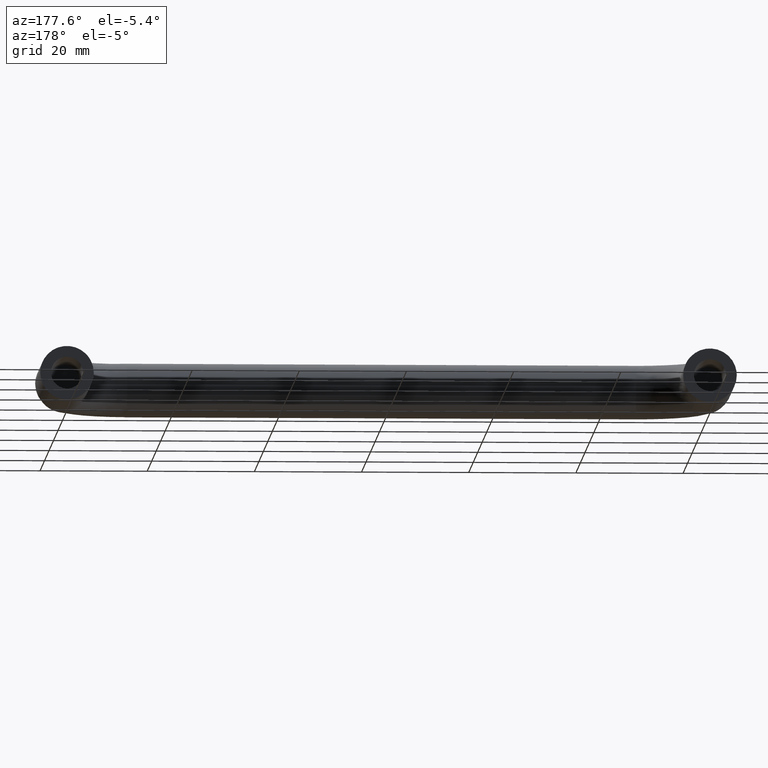
[diagram: clean part render]
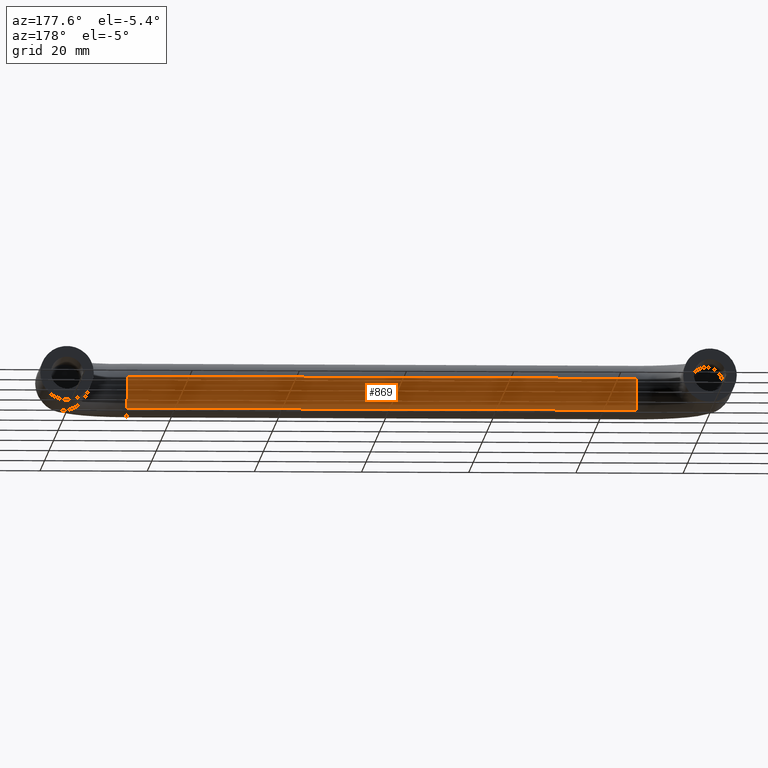
[diagram: same view with one face highlighted and labeled with its STEP entity id]
A machine part, auxiliary view. The second image highlights one B-rep face of the part: STEP entity #869.
In plain terms, the highlighted face is a freeform B-spline surface patch.
Its self-contained STEP definition (entity closure, byte-faithful):
#650=CARTESIAN_POINT('',(107.500000000000000,-30.521972536837890,2.224245948443190));
#651=VERTEX_POINT('',#650);
#669=CARTESIAN_POINT('',(12.499999999949400,-30.521972536863860,2.224245948429610));
#670=VERTEX_POINT('',#669);
#671=CARTESIAN_POINT('',(12.499999999949400,-30.521972536863860,2.224245948429610));
#672=CARTESIAN_POINT('',(107.500000000000000,-30.521972536837890,2.224245948443190));
#673=QUASI_UNIFORM_CURVE('',1,(#671,#672),.UNSPECIFIED.,.F.,.U.);
#674=EDGE_CURVE('',#670,#651,#673,.T.);
#723=CARTESIAN_POINT('',(12.500000000000000,-31.558228442135000,-3.626873108266699));
#724=VERTEX_POINT('',#723);
#740=CARTESIAN_POINT('',(107.500000000324110,-31.558227913072550,-3.626872605960986));
#741=VERTEX_POINT('',#740);
#742=CARTESIAN_POINT('',(12.500000000000000,-31.558228442135000,-3.626873108266699));
#743=CARTESIAN_POINT('',(107.500000000324110,-31.558227913072550,-3.626872605960986));
#744=QUASI_UNIFORM_CURVE('',1,(#742,#743),.UNSPECIFIED.,.F.,.U.);
#745=EDGE_CURVE('',#724,#741,#744,.T.);
#795=CARTESIAN_POINT('',(10.124999941214480,-31.558227121531232,-3.626871855061437));
#796=CARTESIAN_POINT('',(10.124999941214483,-28.878708249008774,-1.084103389193821));
#797=CARTESIAN_POINT('',(10.124999941214483,-30.521972536820851,2.224245948408881));
#798=CARTESIAN_POINT('',(109.934375002968100,-31.558227121531232,-3.626871855061437));
#799=CARTESIAN_POINT('',(109.934375002968070,-28.878708249008760,-1.084103389193821));
#800=CARTESIAN_POINT('',(109.934375002968050,-30.521972536820840,2.224245948408881));
#808=(BOUNDED_SURFACE()B_SPLINE_SURFACE(2,1,((#795,#798),(#796,#799),(#797,#800)),.UNSPECIFIED.,.F.,.F.,.U.)B_SPLINE_SURFACE_WITH_KNOTS((3,3),(2,2),(0.0,6.582243619433232),(0.0,99.809375061753585),.UNSPECIFIED.)GEOMETRIC_REPRESENTATION_ITEM()RATIONAL_B_SPLINE_SURFACE(((1.0,1.0),(0.765685424949238,0.765685424949238),(0.906274169979695,0.906274169979695)))REPRESENTATION_ITEM('')SURFACE());
#809=CARTESIAN_POINT('',(107.500000000000000,-30.0,0.0));
#810=VERTEX_POINT('',#809);
#811=CARTESIAN_POINT('',(107.500000000000000,-30.0,0.0));
#812=CARTESIAN_POINT('',(107.499999999999990,-30.000000000000011,1.173369647390433));
#813=CARTESIAN_POINT('',(107.500000000000000,-30.521972536837890,2.224245948443190));
#821=(BOUNDED_CURVE()B_SPLINE_CURVE(2,(#811,#812,#813),.UNSPECIFIED.,.F.,.U.)B_SPLINE_CURVE_WITH_KNOTS((3,3),(0.500000000000000,0.575619190624772),.UNSPECIFIED.)CURVE()GEOMETRIC_REPRESENTATION_ITEM()RATIONAL_B_SPLINE_CURVE((1.0,0.911406607415370,0.876408099966359))REPRESENTATION_ITEM(''));
#822=EDGE_CURVE('',#810,#651,#821,.T.);
#823=ORIENTED_EDGE('',*,*,#822,.F.);
#824=CARTESIAN_POINT('',(107.500000000324090,-31.558227913072553,-3.626872605960986));
#825=CARTESIAN_POINT('',(107.500000000000000,-30.000000000000007,-2.148170175827158));
#826=CARTESIAN_POINT('',(107.500000000000000,-30.0,0.0));
#834=(BOUNDED_CURVE()B_SPLINE_CURVE(2,(#824,#825,#826),.UNSPECIFIED.,.F.,.U.)B_SPLINE_CURVE_WITH_KNOTS((3,3),(0.371049493739702,0.500000000000000),.UNSPECIFIED.)CURVE()GEOMETRIC_REPRESENTATION_ITEM()RATIONAL_B_SPLINE_CURVE((0.853699663807202,0.848925084615189,1.0))REPRESENTATION_ITEM(''));
#835=EDGE_CURVE('',#741,#810,#834,.T.);
#836=ORIENTED_EDGE('',*,*,#835,.F.);
#837=ORIENTED_EDGE('',*,*,#745,.F.);
#838=CARTESIAN_POINT('',(12.500000000000000,-30.0,0.0));
#839=VERTEX_POINT('',#838);
#840=CARTESIAN_POINT('',(12.500000000000000,-31.558228442135000,-3.626873108266699));
#841=CARTESIAN_POINT('',(12.500000000000002,-30.000000000000007,-2.148170608151419));
#842=CARTESIAN_POINT('',(12.500000000000000,-30.0,0.0));
#850=(BOUNDED_CURVE()B_SPLINE_CURVE(2,(#840,#841,#842),.UNSPECIFIED.,.F.,.U.)B_SPLINE_CURVE_WITH_KNOTS((3,3),(0.371049471708747,0.500000000000000),.UNSPECIFIED.)CURVE()GEOMETRIC_REPRESENTATION_ITEM()RATIONAL_B_SPLINE_CURVE((0.853699665438662,0.848925058804319,1.0))REPRESENTATION_ITEM(''));
#851=EDGE_CURVE('',#724,#839,#850,.T.);
#852=ORIENTED_EDGE('',*,*,#851,.T.);
#853=CARTESIAN_POINT('',(12.500000000000000,-30.0,0.0));
#854=CARTESIAN_POINT('',(12.499999999999991,-30.0,1.173369647373951));
#855=CARTESIAN_POINT('',(12.499999999949392,-30.521972536863863,2.224245948429611));
#863=(BOUNDED_CURVE()B_SPLINE_CURVE(2,(#853,#854,#855),.UNSPECIFIED.,.F.,.U.)B_SPLINE_CURVE_WITH_KNOTS((3,3),(0.500000000000000,0.575619190623804),.UNSPECIFIED.)CURVE()GEOMETRIC_REPRESENTATION_ITEM()RATIONAL_B_SPLINE_CURVE((1.0,0.911406607416505,0.876408099967255))REPRESENTATION_ITEM(''));
#864=EDGE_CURVE('',#839,#670,#863,.T.);
#865=ORIENTED_EDGE('',*,*,#864,.T.);
#866=ORIENTED_EDGE('',*,*,#674,.T.);
#867=EDGE_LOOP('',(#823,#836,#837,#852,#865,#866));
#868=FACE_OUTER_BOUND('',#867,.T.);
#869=ADVANCED_FACE('',(#868),#808,.T.);